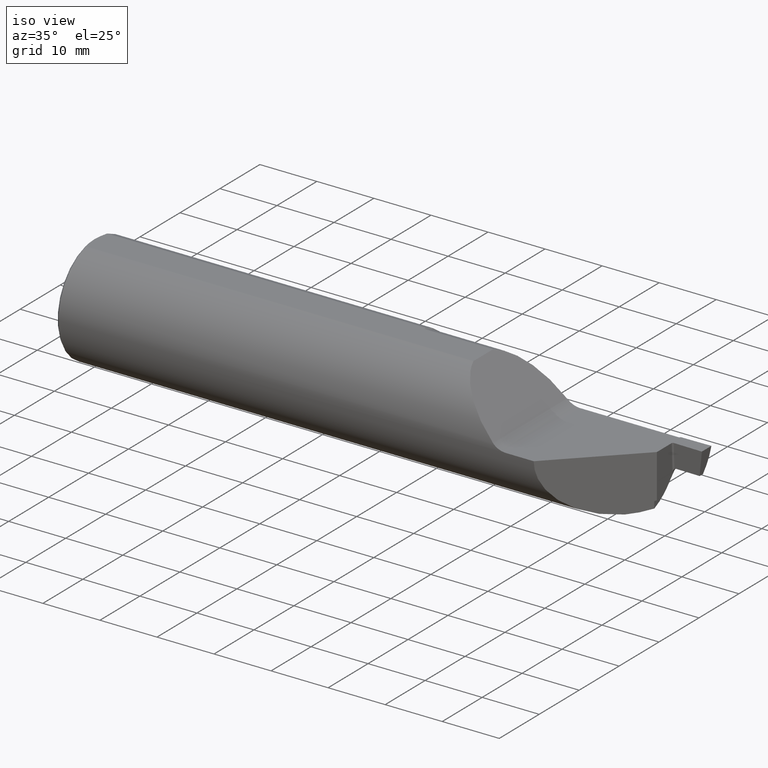
[diagram: clean part render]
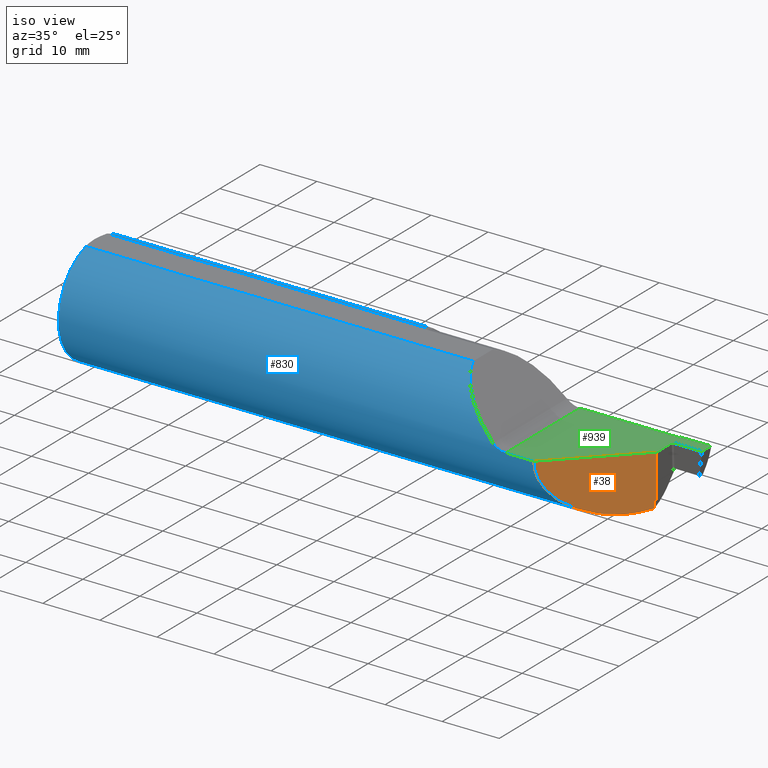
[diagram: same view with three faces highlighted in distinct colors, each labeled with its STEP entity id]
A machine part, iso view with three faces highlighted in distinct colors.
Their STEP definitions:

[orange] entity #38 — the highlighted planar face has unit normal (-0.7071, 0.7071, 0).
#8 = CARTESIAN_POINT ( 'NONE',  ( 3.794999999999999929, 0.1251499999999999557, -0.3748500000000000165 ) ) ;
#38 = ADVANCED_FACE ( 'NONE', ( #647 ), #408, .F. ) ;
#50 = DIRECTION ( 'NONE',  ( -0.000000000000000000, -0.000000000000000000, 1.000000000000000000 ) ) ;
#58 = ORIENTED_EDGE ( 'NONE', *, *, #153, .F. ) ;
#68 = CARTESIAN_POINT ( 'NONE',  ( 3.793078899330582399, 0.1232288993305819952, -0.3019236912555518515 ) ) ;
#75 = VERTEX_POINT ( 'NONE', #571 ) ;
#98 = LINE ( 'NONE', #812, #764 ) ;
#122 = DIRECTION ( 'NONE',  ( 0.000000000000000000, 0.000000000000000000, -1.000000000000000000 ) ) ;
#129 = VERTEX_POINT ( 'NONE', #317 ) ;
#153 = EDGE_CURVE ( 'NONE', #794, #75, #811, .T. ) ;
#161 = CARTESIAN_POINT ( 'NONE',  ( 3.791253233572254189, 0.1214032335722543543, -0.3024668277763196689 ) ) ;
#165 =( BOUNDED_CURVE ( )  B_SPLINE_CURVE ( 3, ( #520, #347, #664, #753 ),
 .UNSPECIFIED., .F., .T. ) 
 B_SPLINE_CURVE_WITH_KNOTS ( ( 4, 4 ),
 ( 6.193712746975151617, 6.283185307179586232 ),
 .UNSPECIFIED. ) 
 CURVE ( )  GEOMETRIC_REPRESENTATION_ITEM ( )  RATIONAL_B_SPLINE_CURVE ( ( 1.000000000000000000, 0.9993329996662503323, 0.9993329996662503323, 1.000000000000000000 ) ) 
 REPRESENTATION_ITEM ( '' )  );
#178 = CARTESIAN_POINT ( 'NONE',  ( 3.447445499169104810, -0.2224045008308942473, -0.3717447289710875125 ) ) ;
#180 = CARTESIAN_POINT ( 'NONE',  ( 3.664553700959537252, -0.005296299040462346119, -0.3748125821213482700 ) ) ;
#216 = CARTESIAN_POINT ( 'NONE',  ( 3.784508153406420661, 0.1146581534064208679, -0.3095636268628005339 ) ) ;
#229 = CARTESIAN_POINT ( 'NONE',  ( 3.794999999999999929, 0.1251499999999999557, -0.3748500000000000165 ) ) ;
#245 = CARTESIAN_POINT ( 'NONE',  ( 3.794900000000000162, 0.1250500000000001333, -0.3013659600542802908 ) ) ;
#263 = VECTOR ( 'NONE', #50, 39.37007874015748143 ) ;
#280 = EDGE_LOOP ( 'NONE', ( #825, #1024, #306, #951, #817, #58, #724, #936, #623, #1019 ) ) ;
#286 = CARTESIAN_POINT ( 'NONE',  ( 3.784508153406420217, 0.1146581534064208679, -0.3078282734362095541 ) ) ;
#306 = ORIENTED_EDGE ( 'NONE', *, *, #972, .F. ) ;
#308 = LINE ( 'NONE', #229, #263 ) ;
#311 = CARTESIAN_POINT ( 'NONE',  ( 3.664553700959537252, -0.005296299040462346119, -0.3748125821213482700 ) ) ;
#317 = CARTESIAN_POINT ( 'NONE',  ( 3.789423123917253555, 0.1195731239172540816, -0.3029953335618298382 ) ) ;
#322 =( BOUNDED_CURVE ( )  B_SPLINE_CURVE ( 3, ( #576, #161, #68, #736 ),
 .UNSPECIFIED., .F., .F. ) 
 B_SPLINE_CURVE_WITH_KNOTS ( ( 4, 4 ),
 ( 1.856701497906702691, 1.872996632874086131 ),
 .UNSPECIFIED. ) 
 CURVE ( )  GEOMETRIC_REPRESENTATION_ITEM ( )  RATIONAL_B_SPLINE_CURVE ( ( 1.000000000000000000, 0.9999778725037737903, 0.9999778725037737903, 1.000000000000000000 ) ) 
 REPRESENTATION_ITEM ( '' )  );
#338 = CARTESIAN_POINT ( 'NONE',  ( 3.704757219211317842, 0.03490721921131892391, -0.3735410370179320094 ) ) ;
#347 = CARTESIAN_POINT ( 'NONE',  ( 3.794933355581517009, 0.1250833555815173692, -0.1835090392727420638 ) ) ;
#377 = VERTEX_POINT ( 'NONE', #585 ) ;
#382 = EDGE_CURVE ( 'NONE', #788, #75, #986, .T. ) ;
#384 =( BOUNDED_CURVE ( )  B_SPLINE_CURVE ( 3, ( #436, #907, #338, #180 ),
 .UNSPECIFIED., .F., .F. ) 
 B_SPLINE_CURVE_WITH_KNOTS ( ( 4, 4 ),
 ( 4.360361105921814584, 4.680771812723159009 ),
 .UNSPECIFIED. ) 
 CURVE ( )  GEOMETRIC_REPRESENTATION_ITEM ( )  RATIONAL_B_SPLINE_CURVE ( ( 1.000000000000000000, 0.9914630306830952700, 0.9914630306830952700, 1.000000000000000000 ) ) 
 REPRESENTATION_ITEM ( '' )  );
#403 = B_SPLINE_CURVE_WITH_KNOTS ( 'NONE', 3,
 ( #723, #1020, #627, #472 ),
 .UNSPECIFIED., .F., .F.,
 ( 4, 4 ),
 ( 0.0007113458493480599287, 0.0008013560828531815939 ),
 .UNSPECIFIED. ) ;
#408 = PLANE ( 'NONE',  #987 ) ;
#419 = DIRECTION ( 'NONE',  ( -0.7071067811865487940, -0.7071067811865462405, 0.000000000000000000 ) ) ;
#428 = CARTESIAN_POINT ( 'NONE',  ( 3.794999999999999929, 0.1251499999999999557, 0.000000000000000000 ) ) ;
#436 = CARTESIAN_POINT ( 'NONE',  ( 3.781999999999999584, 0.1121500000000000274, -0.3520032855517955528 ) ) ;
#440 = DIRECTION ( 'NONE',  ( 0.000000000000000000, 0.000000000000000000, 1.000000000000000000 ) ) ;
#452 = CARTESIAN_POINT ( 'NONE',  ( 3.785275225856817194, 0.1154252258568166101, -0.3062930651839017027 ) ) ;
#472 = CARTESIAN_POINT ( 'NONE',  ( 3.781999999999999584, 0.1121500000000000274, -0.3520032855517955528 ) ) ;
#493 = CARTESIAN_POINT ( 'NONE',  ( 3.664553700959537252, -0.005296299040462346119, -0.3748125821213482700 ) ) ;
#511 = DIRECTION ( 'NONE',  ( -0.7071067811865487940, -0.7071067811865462405, 0.000000000000000000 ) ) ;
#520 = CARTESIAN_POINT ( 'NONE',  ( 3.794999999999999929, 0.1251499999999999557, -0.1827661692096326229 ) ) ;
#527 = CARTESIAN_POINT ( 'NONE',  ( 3.784508153406420661, 0.1146581534064208679, -0.3095636268628005339 ) ) ;
#534 = CARTESIAN_POINT ( 'NONE',  ( 3.788232311963436238, 0.1183823119634349608, -0.3033392206099794763 ) ) ;
#538 = CARTESIAN_POINT ( 'NONE',  ( 3.784508153406420661, 0.1146581534064208679, 0.02800000000000001446 ) ) ;
#544 = EDGE_CURVE ( 'NONE', #770, #989, #562, .T. ) ;
#559 = EDGE_CURVE ( 'NONE', #792, #788, #308, .T. ) ;
#562 = LINE ( 'NONE', #538, #1011 ) ;
#571 = CARTESIAN_POINT ( 'NONE',  ( 3.294999999999998153, -0.3748500000000000165, 0.000000000000000000 ) ) ;
#575 = DIRECTION ( 'NONE',  ( -0.7071067811865462405, 0.7071067811865487940, 0.000000000000000000 ) ) ;
#576 = CARTESIAN_POINT ( 'NONE',  ( 3.789423123917253555, 0.1195731239172540816, -0.3029953335618298382 ) ) ;
#585 = CARTESIAN_POINT ( 'NONE',  ( 3.781999999999999584, 0.1121500000000000274, -0.3520032855517955528 ) ) ;
#593 = B_SPLINE_CURVE_WITH_KNOTS ( 'NONE', 3,
 ( #527, #286, #452, #603, #534, #773 ),
 .UNSPECIFIED., .F., .F.,
 ( 4, 2, 4 ),
 ( 0.000000000000000000, 0.0001297580915980793819, 0.0002595161831961587638 ),
 .UNSPECIFIED. ) ;
#603 = CARTESIAN_POINT ( 'NONE',  ( 3.787106642798911071, 0.1172566427989112509, -0.3040948129089499630 ) ) ;
#608 = EDGE_CURVE ( 'NONE', #129, #624, #322, .T. ) ;
#623 = ORIENTED_EDGE ( 'NONE', *, *, #544, .F. ) ;
#624 = VERTEX_POINT ( 'NONE', #245 ) ;
#627 = CARTESIAN_POINT ( 'NONE',  ( 3.782821277637064217, 0.1129712776370640909, -0.3517016070492356983 ) ) ;
#647 = FACE_OUTER_BOUND ( 'NONE', #280, .T. ) ;
#664 = CARTESIAN_POINT ( 'NONE',  ( 3.794900000000000162, 0.1250500000000000500, -0.1842541465229824149 ) ) ;
#668 = CARTESIAN_POINT ( 'NONE',  ( 3.794900000000000162, 0.1250500000000001055, -0.1849999999999999423 ) ) ;
#671 = CARTESIAN_POINT ( 'NONE',  ( 3.294999999999998153, -0.3748500000000000165, 0.000000000000000000 ) ) ;
#698 = CARTESIAN_POINT ( 'NONE',  ( 3.794999999999999929, 0.1251499999999999557, 0.000000000000000000 ) ) ;
#723 = CARTESIAN_POINT ( 'NONE',  ( 3.784508153406422881, 0.1146581534064229219, -0.3515026050912949396 ) ) ;
#724 = ORIENTED_EDGE ( 'NONE', *, *, #999, .F. ) ;
#736 = CARTESIAN_POINT ( 'NONE',  ( 3.794900000000000162, 0.1250500000000001333, -0.3013659600542802908 ) ) ;
#753 = CARTESIAN_POINT ( 'NONE',  ( 3.794900000000000162, 0.1250500000000001055, -0.1849999999999999423 ) ) ;
#764 = VECTOR ( 'NONE', #440, 39.37007874015748143 ) ;
#770 = VERTEX_POINT ( 'NONE', #216 ) ;
#773 = CARTESIAN_POINT ( 'NONE',  ( 3.789423123917253555, 0.1195731239172540816, -0.3029953335618298382 ) ) ;
#774 = EDGE_CURVE ( 'NONE', #770, #129, #593, .T. ) ;
#788 = VERTEX_POINT ( 'NONE', #698 ) ;
#792 = VERTEX_POINT ( 'NONE', #1013 ) ;
#794 = VERTEX_POINT ( 'NONE', #311 ) ;
#799 = EDGE_CURVE ( 'NONE', #989, #377, #403, .T. ) ;
#811 =( BOUNDED_CURVE ( )  B_SPLINE_CURVE ( 3, ( #493, #178, #977, #671 ),
 .UNSPECIFIED., .F., .T. ) 
 B_SPLINE_CURVE_WITH_KNOTS ( ( 4, 4 ),
 ( 4.726518566284859446, 6.283185307179586232 ),
 .UNSPECIFIED. ) 
 CURVE ( )  GEOMETRIC_REPRESENTATION_ITEM ( )  RATIONAL_B_SPLINE_CURVE ( ( 1.000000000000000000, 0.8080564375984994330, 0.8080564375984994330, 1.000000000000000000 ) ) 
 REPRESENTATION_ITEM ( '' )  );
#812 = CARTESIAN_POINT ( 'NONE',  ( 3.794900000000000162, 0.1250500000000001333, -0.3748500000000000165 ) ) ;
#817 = ORIENTED_EDGE ( 'NONE', *, *, #382, .T. ) ;
#820 = VECTOR ( 'NONE', #511, 39.37007874015748143 ) ;
#825 = ORIENTED_EDGE ( 'NONE', *, *, #608, .T. ) ;
#904 = CARTESIAN_POINT ( 'NONE',  ( 3.784508153406422881, 0.1146581534064229219, -0.3515026050912949396 ) ) ;
#907 = CARTESIAN_POINT ( 'NONE',  ( 3.744243075098297791, 0.07439307509829856668, -0.3658724718559223099 ) ) ;
#914 = EDGE_CURVE ( 'NONE', #624, #927, #98, .T. ) ;
#927 = VERTEX_POINT ( 'NONE', #668 ) ;
#936 = ORIENTED_EDGE ( 'NONE', *, *, #799, .F. ) ;
#951 = ORIENTED_EDGE ( 'NONE', *, *, #559, .T. ) ;
#972 = EDGE_CURVE ( 'NONE', #792, #927, #165, .T. ) ;
#977 = CARTESIAN_POINT ( 'NONE',  ( 3.294999999999998153, -0.3748500000000000165, -0.2171298758983353783 ) ) ;
#986 = LINE ( 'NONE', #428, #820 ) ;
#987 = AXIS2_PLACEMENT_3D ( 'NONE', #8, #575, #419 ) ;
#989 = VERTEX_POINT ( 'NONE', #904 ) ;
#999 = EDGE_CURVE ( 'NONE', #377, #794, #384, .T. ) ;
#1011 = VECTOR ( 'NONE', #122, 39.37007874015748143 ) ;
#1013 = CARTESIAN_POINT ( 'NONE',  ( 3.794999999999999929, 0.1251499999999999557, -0.1827661692096326229 ) ) ;
#1019 = ORIENTED_EDGE ( 'NONE', *, *, #774, .T. ) ;
#1020 = CARTESIAN_POINT ( 'NONE',  ( 3.783664861244531608, 0.1138148612445318009, -0.3515214708982223324 ) ) ;
#1024 = ORIENTED_EDGE ( 'NONE', *, *, #914, .T. ) ;

[blue] entity #830 — the highlighted cylindrical surface (partial cylindrical patch) has radius 9.5212 mm, axis along (-1, -0, -0).
#3 = CARTESIAN_POINT ( 'NONE',  ( 2.217205172110453759, -0.004442550266769258564, -0.3748237406597619281 ) ) ;
#5 = CARTESIAN_POINT ( 'NONE',  ( 2.217572357894051382, -0.005070499875742321555, -0.3748157603565183127 ) ) ;
#9 = CARTESIAN_POINT ( 'NONE',  ( 2.210067526557148998, 0.1440186858712267093, -0.3464171226890089827 ) ) ;
#15 = CARTESIAN_POINT ( 'NONE',  ( 3.093373952877382038, -0.3748500000000000165, 2.250973383451388219E-19 ) ) ;
#25 = CARTESIAN_POINT ( 'NONE',  ( 2.209999999999999520, 0.1714888527564265575, -0.3333228103209929793 ) ) ;
#56 = CARTESIAN_POINT ( 'NONE',  ( 0.01499999999999963515, 0.000000000000000000, 0.000000000000000000 ) ) ;
#61 = EDGE_CURVE ( 'NONE', #62, #606, #572, .T. ) ;
#62 = VERTEX_POINT ( 'NONE', #248 ) ;
#72 = CIRCLE ( 'NONE', #892, 0.3748500000000000165 ) ;
#75 = VERTEX_POINT ( 'NONE', #571 ) ;
#78 = LINE ( 'NONE', #974, #878 ) ;
#79 = CARTESIAN_POINT ( 'NONE',  ( 2.216221164986206915, -0.0009606553485408934499, -0.3748499724895911767 ) ) ;
#96 = LINE ( 'NONE', #273, #167 ) ;
#109 = VERTEX_POINT ( 'NONE', #214 ) ;
#124 = ORIENTED_EDGE ( 'NONE', *, *, #662, .T. ) ;
#125 = CARTESIAN_POINT ( 'NONE',  ( 2.209999999999999520, 0.1502426316186075417, 0.3442536256613089596 ) ) ;
#132 = CARTESIAN_POINT ( 'NONE',  ( 2.209999999999999520, 0.1714888527564265575, 0.3333228103209929793 ) ) ;
#133 = VERTEX_POINT ( 'NONE', #480 ) ;
#147 = CARTESIAN_POINT ( 'NONE',  ( 0.01499999999999963515, 0.000000000000000000, 0.000000000000000000 ) ) ;
#149 = EDGE_LOOP ( 'NONE', ( #447, #563, #547, #1006, #182, #301, #828, #124, #313, #442, #933, #349 ) ) ;
#153 = EDGE_CURVE ( 'NONE', #794, #75, #811, .T. ) ;
#159 = CARTESIAN_POINT ( 'NONE',  ( 3.069292917219418104, -0.3748322207226623681, 0.003980296266681139332 ) ) ;
#163 = CARTESIAN_POINT ( 'NONE',  ( 2.210379091857773037, 0.1153330550303213464, -0.3569936850836157305 ) ) ;
#167 = VECTOR ( 'NONE', #348, 39.37007874015748143 ) ;
#175 = CARTESIAN_POINT ( 'NONE',  ( 2.209999999999999520, 0.1714888527564265575, 0.3333228103209929793 ) ) ;
#178 = CARTESIAN_POINT ( 'NONE',  ( 3.447445499169104810, -0.2224045008308942473, -0.3717447289710875125 ) ) ;
#182 = ORIENTED_EDGE ( 'NONE', *, *, #354, .T. ) ;
#190 = B_SPLINE_CURVE_WITH_KNOTS ( 'NONE', 3,
 ( #132, #125, #625, #227 ),
 .UNSPECIFIED., .F., .F.,
 ( 4, 4 ),
 ( 0.007243651949323670278, 0.009102665532278453320 ),
 .UNSPECIFIED. ) ;
#197 = CARTESIAN_POINT ( 'NONE',  ( 2.689999999999997282, -0.1049785692415360905, 0.3598500000000000587 ) ) ;
#205 =( BOUNDED_CURVE ( )  B_SPLINE_CURVE ( 3, ( #362, #353, #908, #581 ),
 .UNSPECIFIED., .F., .F. ) 
 B_SPLINE_CURVE_WITH_KNOTS ( ( 4, 4 ),
 ( 4.810215078472481309, 5.999334037848846002 ),
 .UNSPECIFIED. ) 
 CURVE ( )  GEOMETRIC_REPRESENTATION_ITEM ( )  RATIONAL_B_SPLINE_CURVE ( ( 1.000000000000000000, 0.8855968893122885266, 0.8855968893122885266, 1.000000000000000000 ) ) 
 REPRESENTATION_ITEM ( '' )  );
#214 = CARTESIAN_POINT ( 'NONE',  ( 0.01499999999999933678, -0.1049785692415364929, 0.3598500000000000587 ) ) ;
#227 = CARTESIAN_POINT ( 'NONE',  ( 2.210579766348813369, 0.1049785692409357929, 0.3598500000001751409 ) ) ;
#234 = DIRECTION ( 'NONE',  ( 1.000000000000000000, 0.000000000000000000, 0.000000000000000000 ) ) ;
#246 = CARTESIAN_POINT ( 'NONE',  ( 2.215441574561693550, 0.003804143292309238294, -0.3748355867472766834 ) ) ;
#248 = CARTESIAN_POINT ( 'NONE',  ( 3.101626695296630487, -0.3748500000000000165, 0.000000000000000000 ) ) ;
#252 = CARTESIAN_POINT ( 'NONE',  ( 2.211858848559063340, 0.05547954033598817558, -0.3710392017518255314 ) ) ;
#254 = CARTESIAN_POINT ( 'NONE',  ( 2.215703358291751801, 0.001888924849824000175, -0.3748500545544785623 ) ) ;
#273 = CARTESIAN_POINT ( 'NONE',  ( 0.000000000000000000, 0.1049785692415360905, 0.3598500000000000587 ) ) ;
#301 = ORIENTED_EDGE ( 'NONE', *, *, #476, .T. ) ;
#311 = CARTESIAN_POINT ( 'NONE',  ( 3.664553700959537252, -0.005296299040462346119, -0.3748125821213482700 ) ) ;
#313 = ORIENTED_EDGE ( 'NONE', *, *, #411, .T. ) ;
#316 = CIRCLE ( 'NONE', #360, 0.3748500000000000165 ) ;
#330 = CARTESIAN_POINT ( 'NONE',  ( 2.214386707770565454, 0.01338693522147573270, -0.3746306200492980909 ) ) ;
#334 = CARTESIAN_POINT ( 'NONE',  ( 2.216929290344706871, -0.003769662387745528840, -0.3748313132672870251 ) ) ;
#336 = CARTESIAN_POINT ( 'NONE',  ( 2.210000000000000409, 0.1579546063831414326, -0.3402859472909542937 ) ) ;
#340 = CARTESIAN_POINT ( 'NONE',  ( 3.046230871488964542, -0.3746497198372802373, 0.01264638996857846837 ) ) ;
#348 = DIRECTION ( 'NONE',  ( 1.000000000000000000, 0.000000000000000000, 0.000000000000000000 ) ) ;
#349 = ORIENTED_EDGE ( 'NONE', *, *, #883, .F. ) ;
#353 = CARTESIAN_POINT ( 'NONE',  ( 2.855931234240211225, -0.3576197633839645618, 0.1939187657597854497 ) ) ;
#354 = EDGE_CURVE ( 'NONE', #606, #771, #205, .T. ) ;
#360 = AXIS2_PLACEMENT_3D ( 'NONE', #946, #234, #460 ) ;
#362 = CARTESIAN_POINT ( 'NONE',  ( 3.013238347648311777, -0.3730577829399617240, 0.03661165235168221260 ) ) ;
#411 = EDGE_CURVE ( 'NONE', #684, #133, #96, .T. ) ;
#413 = DIRECTION ( 'NONE',  ( 0.000000000000000000, 0.000000000000000000, -1.000000000000000000 ) ) ;
#414 = CARTESIAN_POINT ( 'NONE',  ( 2.217752267574260472, -0.005296299040551710399, -0.3748125821213490472 ) ) ;
#415 = AXIS2_PLACEMENT_3D ( 'NONE', #56, #473, #775 ) ;
#424 = CARTESIAN_POINT ( 'NONE',  ( 3.085258887130427841, -0.3748524796876536169, 0.0008092726799575582350 ) ) ;
#435 = VERTEX_POINT ( 'NONE', #631 ) ;
#442 = ORIENTED_EDGE ( 'NONE', *, *, #727, .F. ) ;
#447 = ORIENTED_EDGE ( 'NONE', *, *, #806, .F. ) ;
#460 = DIRECTION ( 'NONE',  ( 0.000000000000000000, 0.000000000000000000, -1.000000000000000000 ) ) ;
#473 = DIRECTION ( 'NONE',  ( 1.000000000000000000, 0.000000000000000000, 0.000000000000000000 ) ) ;
#476 = EDGE_CURVE ( 'NONE', #771, #109, #635, .T. ) ;
#480 = CARTESIAN_POINT ( 'NONE',  ( 2.210579766348813369, 0.1049785692409357929, 0.3598500000001751409 ) ) ;
#484 = CARTESIAN_POINT ( 'NONE',  ( 2.217306534198622892, -0.004662217619967922236, -0.3748210611845189666 ) ) ;
#487 = CIRCLE ( 'NONE', #415, 0.3748500000000000165 ) ;
#493 = CARTESIAN_POINT ( 'NONE',  ( 3.664553700959537252, -0.005296299040462346119, -0.3748125821213482700 ) ) ;
#496 = CARTESIAN_POINT ( 'NONE',  ( 2.216789350338707276, -0.003304024008752961487, -0.3748357280308114436 ) ) ;
#505 = CARTESIAN_POINT ( 'NONE',  ( 3.019060788966111186, -0.3736291936090687660, 0.03078921103388285868 ) ) ;
#517 = EDGE_CURVE ( 'NONE', #1029, #943, #316, .T. ) ;
#535 = EDGE_CURVE ( 'NONE', #109, #435, #487, .T. ) ;
#547 = ORIENTED_EDGE ( 'NONE', *, *, #819, .T. ) ;
#558 = VERTEX_POINT ( 'NONE', #867 ) ;
#561 = LINE ( 'NONE', #657, #821 ) ;
#563 = ORIENTED_EDGE ( 'NONE', *, *, #153, .T. ) ;
#568 = DIRECTION ( 'NONE',  ( 0.000000000000000000, 0.000000000000000000, 1.000000000000000000 ) ) ;
#571 = CARTESIAN_POINT ( 'NONE',  ( 3.294999999999998153, -0.3748500000000000165, 0.000000000000000000 ) ) ;
#572 = B_SPLINE_CURVE_WITH_KNOTS ( 'NONE', 3,
 ( #1034, #15, #424, #159, #641, #340, #658, #959, #505, #743 ),
 .UNSPECIFIED., .F., .F.,
 ( 4, 2, 2, 2, 4 ),
 ( 0.000000000000000000, 0.0006199503241697987234, 0.001239900648339597447, 0.001859850972509396062, 0.002479801296679194893 ),
 .UNSPECIFIED. ) ;
#577 = CARTESIAN_POINT ( 'NONE',  ( 2.210623646280942545, 0.1004983591039781549, -0.3614533511788128317 ) ) ;
#581 = CARTESIAN_POINT ( 'NONE',  ( 2.689999999999997282, -0.1049785692415360905, 0.3598500000000000587 ) ) ;
#583 = DIRECTION ( 'NONE',  ( -1.000000000000000000, -0.000000000000000000, -0.000000000000000000 ) ) ;
#606 = VERTEX_POINT ( 'NONE', #732 ) ;
#625 = CARTESIAN_POINT ( 'NONE',  ( 2.210159657165575720, 0.1280789630837260717, 0.3531109523566651753 ) ) ;
#631 = CARTESIAN_POINT ( 'NONE',  ( 0.01499999999999963515, 0.000000000000000000, -0.3748500000000000165 ) ) ;
#635 = LINE ( 'NONE', #1025, #837 ) ;
#640 = CARTESIAN_POINT ( 'NONE',  ( 2.216412161859623531, -0.001906298946121667186, -0.3748463109815587391 ) ) ;
#641 = CARTESIAN_POINT ( 'NONE',  ( 3.061359130489499147, -0.3748087929528916562, 0.006380633086640449293 ) ) ;
#644 = CARTESIAN_POINT ( 'NONE',  ( 2.213452990021402389, 0.02491168912048800227, -0.3741003692830917049 ) ) ;
#651 = CARTESIAN_POINT ( 'NONE',  ( 2.209999999999999520, 0.1714888527564265575, -0.3333228103209929793 ) ) ;
#657 = CARTESIAN_POINT ( 'NONE',  ( 2.999999999999999556, -0.005296299040555572761, -0.3748125821213490472 ) ) ;
#658 = CARTESIAN_POINT ( 'NONE',  ( 3.039056212294848791, -0.3745149928354791768, 0.01648038711453193861 ) ) ;
#662 = EDGE_CURVE ( 'NONE', #435, #684, #72, .T. ) ;
#671 = CARTESIAN_POINT ( 'NONE',  ( 3.294999999999998153, -0.3748500000000000165, 0.000000000000000000 ) ) ;
#684 = VERTEX_POINT ( 'NONE', #730 ) ;
#727 = EDGE_CURVE ( 'NONE', #943, #133, #190, .T. ) ;
#730 = CARTESIAN_POINT ( 'NONE',  ( 0.01499999999999964730, 0.1049785692415360905, 0.3598500000000000587 ) ) ;
#732 = CARTESIAN_POINT ( 'NONE',  ( 3.013238347648311777, -0.3730577829399617240, 0.03661165235168221260 ) ) ;
#742 = CARTESIAN_POINT ( 'NONE',  ( 2.214737504670940549, 0.009547592263952818514, -0.3747479557988489529 ) ) ;
#743 = CARTESIAN_POINT ( 'NONE',  ( 3.013238347648311777, -0.3730577829399617240, 0.03661165235168221260 ) ) ;
#771 = VERTEX_POINT ( 'NONE', #197 ) ;
#775 = DIRECTION ( 'NONE',  ( 0.000000000000000000, 0.000000000000000000, -1.000000000000000000 ) ) ;
#794 = VERTEX_POINT ( 'NONE', #311 ) ;
#798 = DIRECTION ( 'NONE',  ( 1.000000000000000000, 0.000000000000000000, 0.000000000000000000 ) ) ;
#806 = EDGE_CURVE ( 'NONE', #794, #558, #561, .T. ) ;
#811 =( BOUNDED_CURVE ( )  B_SPLINE_CURVE ( 3, ( #493, #178, #977, #671 ),
 .UNSPECIFIED., .F., .T. ) 
 B_SPLINE_CURVE_WITH_KNOTS ( ( 4, 4 ),
 ( 4.726518566284859446, 6.283185307179586232 ),
 .UNSPECIFIED. ) 
 CURVE ( )  GEOMETRIC_REPRESENTATION_ITEM ( )  RATIONAL_B_SPLINE_CURVE ( ( 1.000000000000000000, 0.8080564375984994330, 0.8080564375984994330, 1.000000000000000000 ) ) 
 REPRESENTATION_ITEM ( '' )  );
#819 = EDGE_CURVE ( 'NONE', #75, #62, #78, .T. ) ;
#821 = VECTOR ( 'NONE', #900, 39.37007874015748143 ) ;
#828 = ORIENTED_EDGE ( 'NONE', *, *, #535, .T. ) ;
#830 = ADVANCED_FACE ( 'NONE', ( #877 ), #1032, .T. ) ;
#837 = VECTOR ( 'NONE', #998, 39.37007874015748143 ) ;
#867 = CARTESIAN_POINT ( 'NONE',  ( 2.217999999999999527, -0.005296299040551805809, -0.3748125821213491582 ) ) ;
#877 = FACE_OUTER_BOUND ( 'NONE', #149, .T. ) ;
#878 = VECTOR ( 'NONE', #583, 39.37007874015748143 ) ;
#882 = CARTESIAN_POINT ( 'NONE',  ( 0.000000000000000000, 0.000000000000000000, 0.000000000000000000 ) ) ;
#883 = EDGE_CURVE ( 'NONE', #558, #1029, #1004, .T. ) ;
#886 = DIRECTION ( 'NONE',  ( -1.000000000000000000, -0.000000000000000000, -0.000000000000000000 ) ) ;
#892 = AXIS2_PLACEMENT_3D ( 'NONE', #147, #798, #413 ) ;
#900 = DIRECTION ( 'NONE',  ( -1.000000000000000000, -0.000000000000000000, -0.000000000000000000 ) ) ;
#908 = CARTESIAN_POINT ( 'NONE',  ( 2.734266267726560784, -0.2567163625501296398, 0.3155837322734360018 ) ) ;
#933 = ORIENTED_EDGE ( 'NONE', *, *, #517, .F. ) ;
#943 = VERTEX_POINT ( 'NONE', #175 ) ;
#946 = CARTESIAN_POINT ( 'NONE',  ( 2.209999999999999520, 0.000000000000000000, 0.000000000000000000 ) ) ;
#959 = CARTESIAN_POINT ( 'NONE',  ( 3.025480383452218813, -0.3740067554628414004, 0.02553487587912179127 ) ) ;
#961 = CARTESIAN_POINT ( 'NONE',  ( 2.213005920785810154, 0.03259117574744205964, -0.3735093362909827630 ) ) ;
#964 = CARTESIAN_POINT ( 'NONE',  ( 2.211371013746108449, 0.07058942196465760321, -0.3684638093051770813 ) ) ;
#974 = CARTESIAN_POINT ( 'NONE',  ( 0.000000000000000000, -0.3748500000000000165, 0.000000000000000000 ) ) ;
#977 = CARTESIAN_POINT ( 'NONE',  ( 3.294999999999998153, -0.3748500000000000165, -0.2171298758983353783 ) ) ;
#990 = AXIS2_PLACEMENT_3D ( 'NONE', #882, #886, #568 ) ;
#998 = DIRECTION ( 'NONE',  ( -1.000000000000000000, -0.000000000000000000, -0.000000000000000000 ) ) ;
#1004 = B_SPLINE_CURVE_WITH_KNOTS ( 'NONE', 3,
 ( #1028, #414, #5, #484, #3, #334, #496, #640, #79, #254, #246, #742, #330, #644, #961, #252, #964, #577, #163, #9, #336, #651 ),
 .UNSPECIFIED., .F., .F.,
 ( 4, 2, 2, 2, 2, 2, 2, 2, 2, 2, 4 ),
 ( 1.970454648199582712E-07, 1.882808925676494294E-05, 3.745913304870988881E-05, 7.472122063259183198E-05, 0.0001492453958003556235, 0.0002982937461358870011, 0.0005963904468069523585, 0.001192583848149084700, 0.002384970650833350900, 0.003577357453517616449, 0.004769744256201882866 ),
 .UNSPECIFIED. ) ;
#1006 = ORIENTED_EDGE ( 'NONE', *, *, #61, .T. ) ;
#1025 = CARTESIAN_POINT ( 'NONE',  ( 0.000000000000000000, -0.1049785692415360905, 0.3598500000000000587 ) ) ;
#1028 = CARTESIAN_POINT ( 'NONE',  ( 2.217999999999999527, -0.005296299040551805809, -0.3748125821213491582 ) ) ;
#1029 = VERTEX_POINT ( 'NONE', #25 ) ;
#1032 = CYLINDRICAL_SURFACE ( 'NONE', #990, 0.3748500000000000165 ) ;
#1034 = CARTESIAN_POINT ( 'NONE',  ( 3.101626695296630487, -0.3748500000000000165, 0.000000000000000000 ) ) ;

[green] entity #939 — the highlighted planar face has unit normal (0, 0, -1).
#6 = VECTOR ( 'NONE', #81, 39.37007874015748143 ) ;
#12 = DIRECTION ( 'NONE',  ( -1.000000000000000000, 0.000000000000000000, 0.000000000000000000 ) ) ;
#39 = ORIENTED_EDGE ( 'NONE', *, *, #283, .F. ) ;
#59 = DIRECTION ( 'NONE',  ( 0.000000000000000000, -1.000000000000000000, 0.000000000000000000 ) ) ;
#60 = CARTESIAN_POINT ( 'NONE',  ( 4.000000000000000000, -0.4748500000000000498, 0.000000000000000000 ) ) ;
#62 = VERTEX_POINT ( 'NONE', #248 ) ;
#75 = VERTEX_POINT ( 'NONE', #571 ) ;
#78 = LINE ( 'NONE', #974, #878 ) ;
#81 = DIRECTION ( 'NONE',  ( 0.000000000000000000, 1.000000000000000000, 0.000000000000000000 ) ) ;
#83 = VECTOR ( 'NONE', #236, 39.37007874015748854 ) ;
#93 = PLANE ( 'NONE',  #894 ) ;
#100 = CIRCLE ( 'NONE', #580, 0.01000000000000016674 ) ;
#106 = DIRECTION ( 'NONE',  ( -0.000000000000000000, -0.000000000000000000, 1.000000000000000000 ) ) ;
#116 = VECTOR ( 'NONE', #793, 39.37007874015748143 ) ;
#120 = ORIENTED_EDGE ( 'NONE', *, *, #971, .F. ) ;
#142 = LINE ( 'NONE', #1021, #612 ) ;
#151 = LINE ( 'NONE', #423, #83 ) ;
#169 = AXIS2_PLACEMENT_3D ( 'NONE', #352, #106, #818 ) ;
#185 = VECTOR ( 'NONE', #207, 39.37007874015748143 ) ;
#207 = DIRECTION ( 'NONE',  ( 0.000000000000000000, 1.000000000000000000, 0.000000000000000000 ) ) ;
#213 = VERTEX_POINT ( 'NONE', #481 ) ;
#217 = VERTEX_POINT ( 'NONE', #873 ) ;
#236 = DIRECTION ( 'NONE',  ( -0.9998476951563912696, 0.01745240643727496294, -0.000000000000000000 ) ) ;
#243 = EDGE_CURVE ( 'NONE', #406, #372, #151, .T. ) ;
#248 = CARTESIAN_POINT ( 'NONE',  ( 3.101626695296630487, -0.3748500000000000165, 0.000000000000000000 ) ) ;
#272 = DIRECTION ( 'NONE',  ( 0.000000000000000000, 0.000000000000000000, 1.000000000000000000 ) ) ;
#283 = EDGE_CURVE ( 'NONE', #468, #788, #397, .T. ) ;
#299 = EDGE_LOOP ( 'NONE', ( #451, #708, #540, #956, #921, #374, #39, #120, #467, #700, #632 ) ) ;
#339 = CARTESIAN_POINT ( 'NONE',  ( 3.794999999999999929, 0.2692514527403422342, 0.000000000000000000 ) ) ;
#350 = EDGE_CURVE ( 'NONE', #217, #62, #905, .T. ) ;
#352 = CARTESIAN_POINT ( 'NONE',  ( 3.781999999999999584, 0.3658492383597803377, 0.000000000000000000 ) ) ;
#355 = FACE_OUTER_BOUND ( 'NONE', #299, .T. ) ;
#367 = CARTESIAN_POINT ( 'NONE',  ( 3.794999999999999929, 0.2692514527403422342, 0.000000000000000000 ) ) ;
#371 = CARTESIAN_POINT ( 'NONE',  ( 3.781999999999999584, 0.3578492383597800530, 0.000000000000000000 ) ) ;
#372 = VERTEX_POINT ( 'NONE', #673 ) ;
#374 = ORIENTED_EDGE ( 'NONE', *, *, #382, .F. ) ;
#382 = EDGE_CURVE ( 'NONE', #788, #75, #986, .T. ) ;
#397 = LINE ( 'NONE', #339, #645 ) ;
#404 = CARTESIAN_POINT ( 'NONE',  ( 4.000000000000000000, 0.3698492383597805078, -8.537024980200822804E-16 ) ) ;
#406 = VERTEX_POINT ( 'NONE', #911 ) ;
#423 = CARTESIAN_POINT ( 'NONE',  ( 3.805174524064372843, 0.2792499296919061513, 0.000000000000000000 ) ) ;
#428 = CARTESIAN_POINT ( 'NONE',  ( 3.794999999999999929, 0.1251499999999999557, 0.000000000000000000 ) ) ;
#451 = ORIENTED_EDGE ( 'NONE', *, *, #865, .F. ) ;
#467 = ORIENTED_EDGE ( 'NONE', *, *, #243, .F. ) ;
#468 = VERTEX_POINT ( 'NONE', #367 ) ;
#481 = CARTESIAN_POINT ( 'NONE',  ( 3.789999999999999591, 0.3658492383597803377, 0.000000000000000000 ) ) ;
#511 = DIRECTION ( 'NONE',  ( -0.7071067811865487940, -0.7071067811865462405, 0.000000000000000000 ) ) ;
#540 = ORIENTED_EDGE ( 'NONE', *, *, #548, .F. ) ;
#548 = EDGE_CURVE ( 'NONE', #217, #781, #142, .T. ) ;
#569 = VECTOR ( 'NONE', #969, 39.37007874015748143 ) ;
#571 = CARTESIAN_POINT ( 'NONE',  ( 3.294999999999998153, -0.3748500000000000165, 0.000000000000000000 ) ) ;
#573 = EDGE_CURVE ( 'NONE', #597, #691, #687, .T. ) ;
#580 = AXIS2_PLACEMENT_3D ( 'NONE', #672, #272, #12 ) ;
#583 = DIRECTION ( 'NONE',  ( -1.000000000000000000, -0.000000000000000000, -0.000000000000000000 ) ) ;
#584 = DIRECTION ( 'NONE',  ( -1.000000000000000000, 0.000000000000000000, -0.000000000000000000 ) ) ;
#597 = VERTEX_POINT ( 'NONE', #847 ) ;
#605 = CARTESIAN_POINT ( 'NONE',  ( 4.220053754966592408, 0.3736902909404173911, 0.000000000000000000 ) ) ;
#612 = VECTOR ( 'NONE', #693, 39.37007874015748143 ) ;
#632 = ORIENTED_EDGE ( 'NONE', *, *, #573, .F. ) ;
#636 = CIRCLE ( 'NONE', #169, 0.008000000000000024453 ) ;
#645 = VECTOR ( 'NONE', #59, 39.37007874015748143 ) ;
#669 = CARTESIAN_POINT ( 'NONE',  ( 3.101626695296630487, -0.4748500000000000498, 0.000000000000000000 ) ) ;
#672 = CARTESIAN_POINT ( 'NONE',  ( 3.805000000000000160, 0.2692514527403422342, 0.000000000000000000 ) ) ;
#673 = CARTESIAN_POINT ( 'NONE',  ( 3.805174632301676407, 0.2792499278026169818, 8.537024980200822558E-18 ) ) ;
#687 = LINE ( 'NONE', #605, #116 ) ;
#691 = VERTEX_POINT ( 'NONE', #404 ) ;
#693 = DIRECTION ( 'NONE',  ( 1.000000000000000000, 0.000000000000000000, 0.000000000000000000 ) ) ;
#698 = CARTESIAN_POINT ( 'NONE',  ( 3.794999999999999929, 0.1251499999999999557, 0.000000000000000000 ) ) ;
#700 = ORIENTED_EDGE ( 'NONE', *, *, #755, .T. ) ;
#708 = ORIENTED_EDGE ( 'NONE', *, *, #899, .F. ) ;
#737 = CARTESIAN_POINT ( 'NONE',  ( 3.789999999999999591, -0.4748500000000000498, 0.000000000000000000 ) ) ;
#745 = CARTESIAN_POINT ( 'NONE',  ( 3.049999999999999822, -0.4748500000000000498, 0.000000000000000000 ) ) ;
#748 = DIRECTION ( 'NONE',  ( 0.000000000000000000, 0.000000000000000000, -1.000000000000000000 ) ) ;
#755 = EDGE_CURVE ( 'NONE', #406, #691, #791, .T. ) ;
#781 = VERTEX_POINT ( 'NONE', #371 ) ;
#788 = VERTEX_POINT ( 'NONE', #698 ) ;
#791 = LINE ( 'NONE', #60, #185 ) ;
#793 = DIRECTION ( 'NONE',  ( 0.9998476951563914916, 0.01745240643726934937, 0.000000000000000000 ) ) ;
#818 = DIRECTION ( 'NONE',  ( -1.000000000000000000, 0.000000000000000000, 0.000000000000000000 ) ) ;
#819 = EDGE_CURVE ( 'NONE', #75, #62, #78, .T. ) ;
#820 = VECTOR ( 'NONE', #511, 39.37007874015748143 ) ;
#847 = CARTESIAN_POINT ( 'NONE',  ( 3.789999999999999591, 0.3661836747248578550, 0.000000000000000000 ) ) ;
#865 = EDGE_CURVE ( 'NONE', #213, #597, #955, .T. ) ;
#873 = CARTESIAN_POINT ( 'NONE',  ( 3.101626695296630487, 0.3578492383597801640, 0.000000000000000000 ) ) ;
#878 = VECTOR ( 'NONE', #583, 39.37007874015748143 ) ;
#894 = AXIS2_PLACEMENT_3D ( 'NONE', #745, #748, #584 ) ;
#899 = EDGE_CURVE ( 'NONE', #781, #213, #636, .T. ) ;
#905 = LINE ( 'NONE', #669, #569 ) ;
#911 = CARTESIAN_POINT ( 'NONE',  ( 4.000000000000000888, 0.2758492383597805353, 0.000000000000000000 ) ) ;
#921 = ORIENTED_EDGE ( 'NONE', *, *, #819, .F. ) ;
#939 = ADVANCED_FACE ( 'NONE', ( #355 ), #93, .F. ) ;
#955 = LINE ( 'NONE', #737, #6 ) ;
#956 = ORIENTED_EDGE ( 'NONE', *, *, #350, .T. ) ;
#969 = DIRECTION ( 'NONE',  ( 0.000000000000000000, -1.000000000000000000, 0.000000000000000000 ) ) ;
#971 = EDGE_CURVE ( 'NONE', #372, #468, #100, .T. ) ;
#974 = CARTESIAN_POINT ( 'NONE',  ( 0.000000000000000000, -0.3748500000000000165, 0.000000000000000000 ) ) ;
#986 = LINE ( 'NONE', #428, #820 ) ;
#1021 = CARTESIAN_POINT ( 'NONE',  ( 2.209999999999999520, 0.3578492383597801640, 0.000000000000000000 ) ) ;